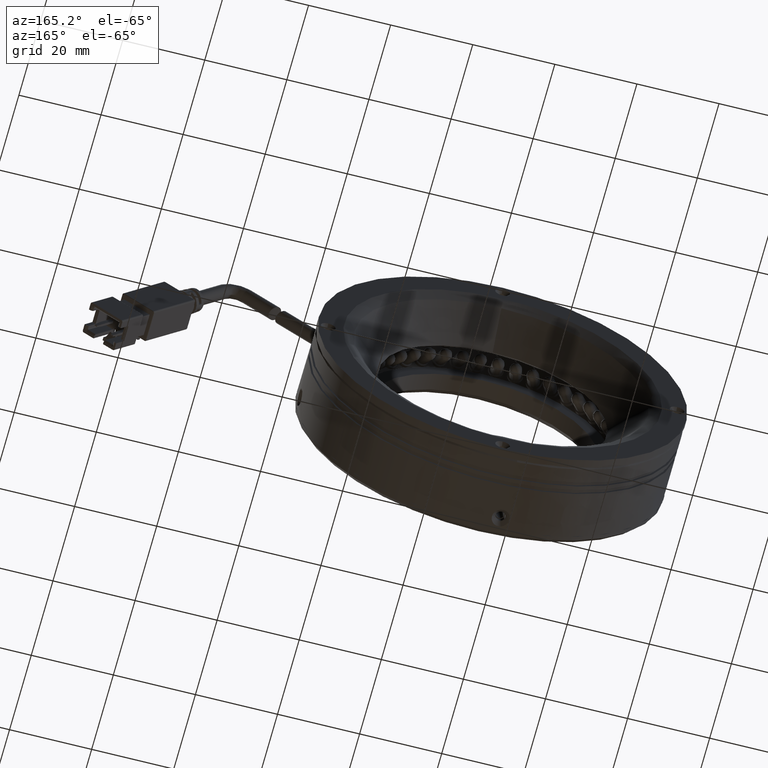
[diagram: clean part render]
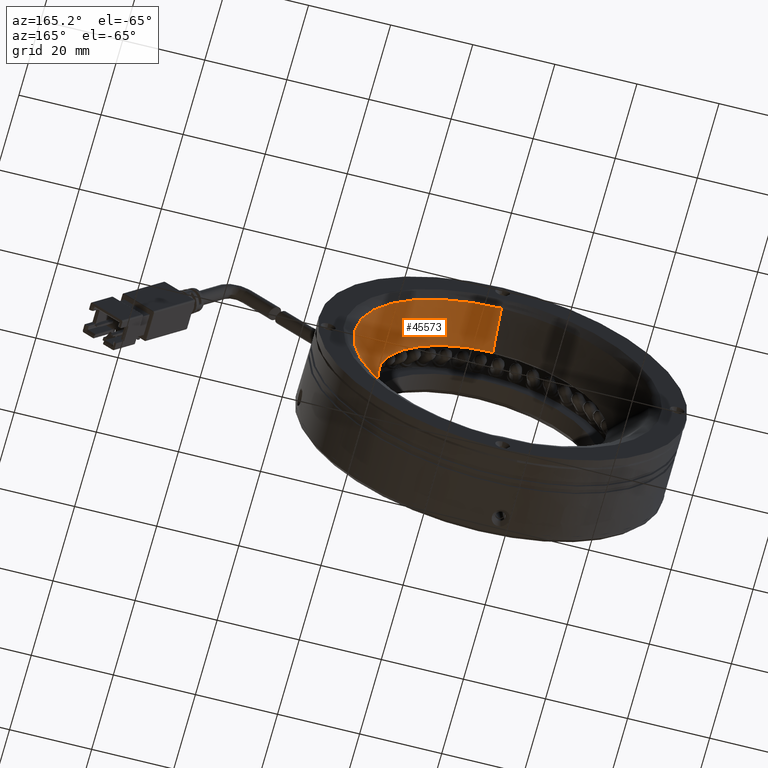
[diagram: same view with one face highlighted and labeled with its STEP entity id]
A machine part, auxiliary view. The second image highlights one B-rep face of the part: STEP entity #45573.
In plain terms, the highlighted conical surface has half-angle 45 deg.
Its self-contained STEP definition (entity closure, byte-faithful):
#2687 = VERTEX_POINT ( 'NONE', #114535 ) ;
#9651 = CARTESIAN_POINT ( 'NONE',  ( -53.99004085520083900, 37.80719313704840100, -3.797922368083184200 ) ) ;
#10390 = AXIS2_PLACEMENT_3D ( 'NONE', #9651, #82462, #20167 ) ;
#12055 = DIRECTION ( 'NONE',  ( -0.0000000000000000000, 1.000000000000000000, -0.0000000000000000000 ) ) ;
#13238 = VERTEX_POINT ( 'NONE', #118576 ) ;
#16133 = LINE ( 'NONE', #102336, #71437 ) ;
#16171 = LINE ( 'NONE', #111945, #71470 ) ;
#18641 = DIRECTION ( 'NONE',  ( 0.0000000000000000000, 0.7071067811865505700, 0.7071067811865444600 ) ) ;
#20167 = DIRECTION ( 'NONE',  ( 0.0000000000000000000, 0.0000000000000000000, -1.000000000000000000 ) ) ;
#23848 = ORIENTED_EDGE ( 'NONE', *, *, #97441, .F. ) ;
#34417 = DIRECTION ( 'NONE',  ( -0.0000000000000000000, 1.000000000000000000, -0.0000000000000000000 ) ) ;
#39318 = EDGE_CURVE ( 'NONE', #53352, #2687, #79929, .T. ) ;
#45353 = ORIENTED_EDGE ( 'NONE', *, *, #50095, .F. ) ;
#45573 = ADVANCED_FACE ( 'NONE', ( #115971 ), #75188, .F. ) ;
#48226 = ORIENTED_EDGE ( 'NONE', *, *, #50789, .T. ) ;
#48948 = CARTESIAN_POINT ( 'NONE',  ( -25.99004085520083500, 29.80719313704832600, -3.797922368083184200 ) ) ;
#50095 = EDGE_CURVE ( 'NONE', #13238, #85762, #132229, .T. ) ;
#50789 = EDGE_CURVE ( 'NONE', #90916, #85762, #16133, .T. ) ;
#53352 = VERTEX_POINT ( 'NONE', #48948 ) ;
#60136 = EDGE_CURVE ( 'NONE', #90916, #53352, #113037, .T. ) ;
#64431 = CARTESIAN_POINT ( 'NONE',  ( -53.99004085520083900, 37.80719313704840100, 32.20207763191682200 ) ) ;
#65871 = DIRECTION ( 'NONE',  ( 0.0000000000000000000, 1.000000000000000000, 0.0000000000000000000 ) ) ;
#71437 = VECTOR ( 'NONE', #18641, 1000.000000000000000 ) ;
#71470 = VECTOR ( 'NONE', #111490, 1000.000000000000000 ) ;
#73192 = AXIS2_PLACEMENT_3D ( 'NONE', #86784, #65871, #128735 ) ;
#74357 = CARTESIAN_POINT ( 'NONE',  ( -53.99004085520083900, 29.80719313704832600, -3.797922368083184200 ) ) ;
#75188 = CONICAL_SURFACE ( 'NONE', #73192, 36.00000000000000700, 0.7853981633974439500 ) ;
#75360 = ORIENTED_EDGE ( 'NONE', *, *, #39318, .F. ) ;
#76300 = CARTESIAN_POINT ( 'NONE',  ( -53.99004085520083900, 29.80719313704832600, 24.20207763191681100 ) ) ;
#79929 = CIRCLE ( 'NONE', #104081, 27.99999999999999300 ) ;
#82462 = DIRECTION ( 'NONE',  ( 0.0000000000000000000, -1.000000000000000000, 0.0000000000000000000 ) ) ;
#84802 = DIRECTION ( 'NONE',  ( 0.0000000000000000000, 0.0000000000000000000, 1.000000000000000000 ) ) ;
#85762 = VERTEX_POINT ( 'NONE', #64431 ) ;
#86784 = CARTESIAN_POINT ( 'NONE',  ( -53.99004085520083900, 37.80719313704840100, -3.797922368083184200 ) ) ;
#90916 = VERTEX_POINT ( 'NONE', #76300 ) ;
#96744 = CARTESIAN_POINT ( 'NONE',  ( -53.99004085520083900, 29.80719313704832600, -3.797922368083184200 ) ) ;
#97441 = EDGE_CURVE ( 'NONE', #2687, #13238, #16171, .T. ) ;
#102336 = CARTESIAN_POINT ( 'NONE',  ( -53.99004085520083900, 37.80719313704840100, 32.20207763191682200 ) ) ;
#104081 = AXIS2_PLACEMENT_3D ( 'NONE', #74357, #12055, #84802 ) ;
#107267 = DIRECTION ( 'NONE',  ( 0.0000000000000000000, 0.0000000000000000000, 1.000000000000000000 ) ) ;
#107779 = AXIS2_PLACEMENT_3D ( 'NONE', #96744, #34417, #107267 ) ;
#108289 = ORIENTED_EDGE ( 'NONE', *, *, #60136, .F. ) ;
#111490 = DIRECTION ( 'NONE',  ( 8.659560562354895900E-017, 0.7071067811865505700, -0.7071067811865444600 ) ) ;
#111945 = CARTESIAN_POINT ( 'NONE',  ( -53.99004085520083200, 37.80719313704840100, -39.79792236808318500 ) ) ;
#113037 = CIRCLE ( 'NONE', #107779, 27.99999999999999300 ) ;
#114535 = CARTESIAN_POINT ( 'NONE',  ( -53.99004085520083200, 29.80719313704832600, -31.79792236808318200 ) ) ;
#115971 = FACE_OUTER_BOUND ( 'NONE', #120915, .T. ) ;
#118576 = CARTESIAN_POINT ( 'NONE',  ( -53.99004085520083200, 37.80719313704840100, -39.79792236808318500 ) ) ;
#120915 = EDGE_LOOP ( 'NONE', ( #23848, #75360, #108289, #48226, #45353 ) ) ;
#128735 = DIRECTION ( 'NONE',  ( 0.0000000000000000000, 0.0000000000000000000, 1.000000000000000000 ) ) ;
#132229 = CIRCLE ( 'NONE', #10390, 36.00000000000000000 ) ;